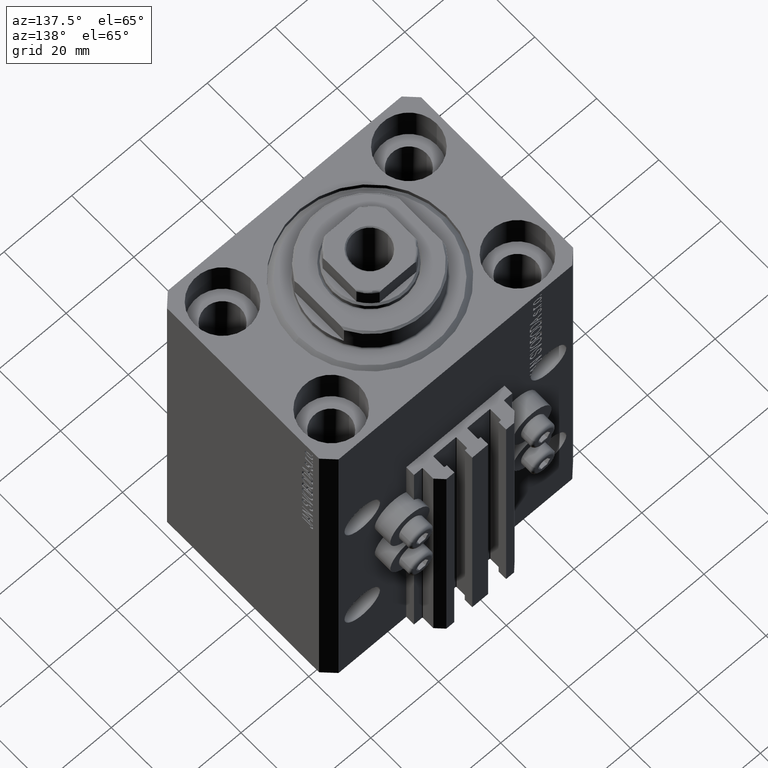
[diagram: clean part render]
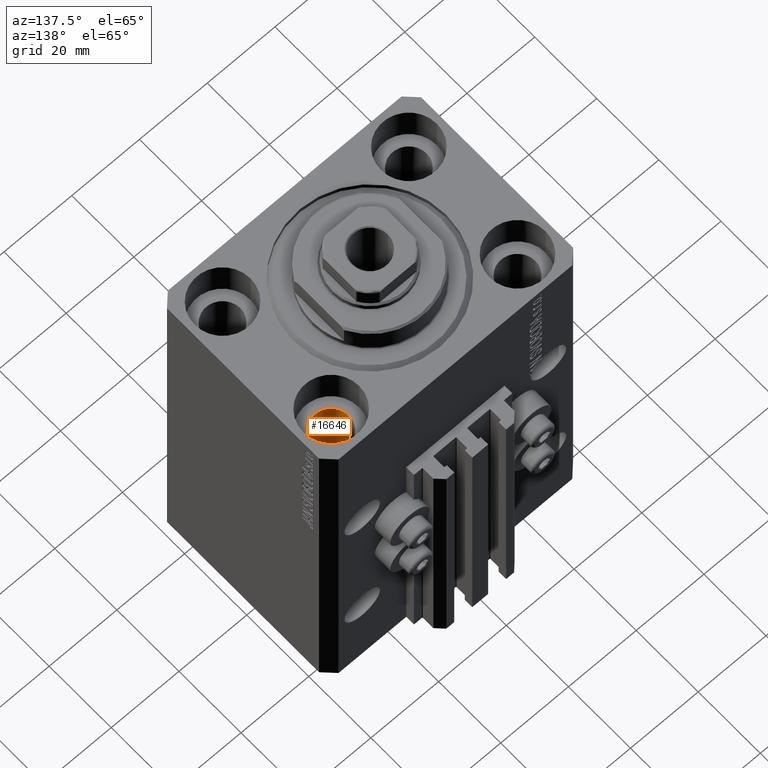
[diagram: same view with one face highlighted and labeled with its STEP entity id]
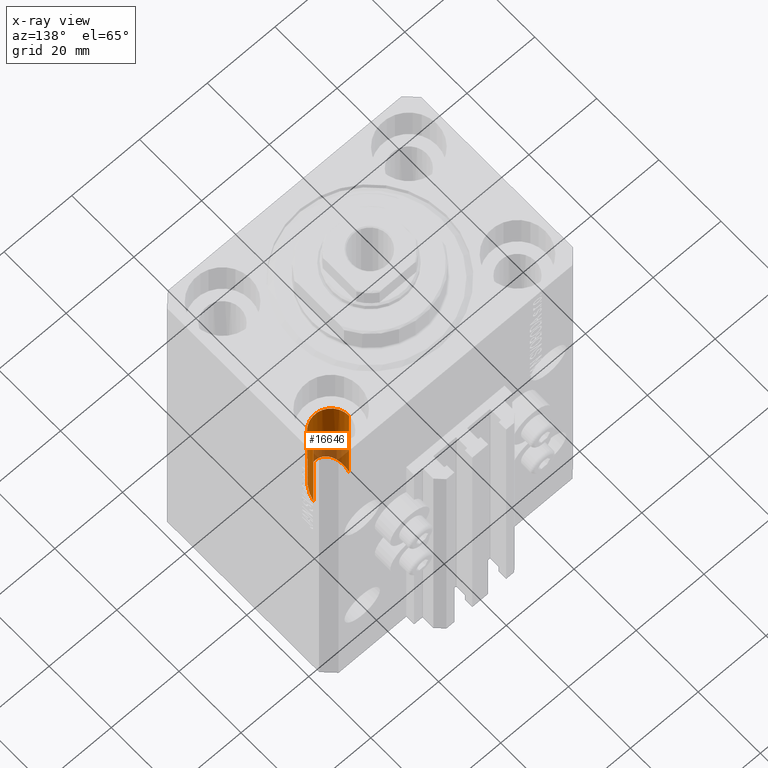
[diagram: x-ray of the same camera — body ghosted, the highlighted face saturated]
A machine part, auxiliary view. The second image highlights one B-rep face of the part: STEP entity #16646.
The next image is the same camera in x-ray: the body ghosted, the highlighted face saturated — about 32% of this face is hidden behind the body in this view.
In plain terms, the highlighted cylindrical surface (edge-blend (fillet) strip) has radius 5.25 mm, axis along (0, 0, 1).
Its self-contained STEP definition (entity closure, byte-faithful):
#458 = CARTESIAN_POINT ( 'NONE',  ( 22.25000000000001066, 7.000000000000031974, -29.50000000000001066 ) ) ;
#4165 = DIRECTION ( 'NONE',  ( -0.000000000000000000, -0.000000000000000000, 1.000000000000000000 ) ) ;
#4407 = LINE ( 'NONE', #33353, #24548 ) ;
#4984 = ORIENTED_EDGE ( 'NONE', *, *, #36917, .T. ) ;
#9651 = CARTESIAN_POINT ( 'NONE',  ( 22.25000000000000000, 17.50000000000001066, -11.00000000000000000 ) ) ;
#9768 = VERTEX_POINT ( 'NONE', #24798 ) ;
#10033 = LINE ( 'NONE', #16755, #45034 ) ;
#10362 = CARTESIAN_POINT ( 'NONE',  ( 27.49999999999999645, 17.50000000000001066, -110.0000000000000000 ) ) ;
#13235 = AXIS2_PLACEMENT_3D ( 'NONE', #10362, #40269, #14884 ) ;
#14884 = DIRECTION ( 'NONE',  ( 1.000000000000000000, 0.000000000000000000, 0.000000000000000000 ) ) ;
#15307 = ORIENTED_EDGE ( 'NONE', *, *, #45936, .F. ) ;
#16646 = ADVANCED_FACE ( 'NONE', ( #24733 ), #43401, .F. ) ;
#16755 = CARTESIAN_POINT ( 'NONE',  ( 32.74999999999999289, 17.50000000000001066, -110.0000000000000000 ) ) ;
#17453 = ORIENTED_EDGE ( 'NONE', *, *, #17631, .T. ) ;
#17631 = EDGE_CURVE ( 'NONE', #24319, #22152, #46150, .T. ) ;
#22152 = VERTEX_POINT ( 'NONE', #22518 ) ;
#22245 = CARTESIAN_POINT ( 'NONE',  ( 32.74999999999999289, 17.50000000000001421, -39.99999999999999289 ) ) ;
#22451 = EDGE_LOOP ( 'NONE', ( #45711, #4984, #17453, #15307 ) ) ;
#22518 = CARTESIAN_POINT ( 'NONE',  ( 32.74999999999999289, 17.50000000000001066, -11.00000000000000000 ) ) ;
#24319 = VERTEX_POINT ( 'NONE', #9651 ) ;
#24548 = VECTOR ( 'NONE', #4165, 1000.000000000000000 ) ;
#24733 = FACE_OUTER_BOUND ( 'NONE', #22451, .T. ) ;
#24798 = CARTESIAN_POINT ( 'NONE',  ( 22.25000000000000711, 17.50000000000001421, -39.99999999999999289 ) ) ;
#25831 = CARTESIAN_POINT ( 'NONE',  ( 22.25000000000000711, 17.50000000000001421, -39.99999999999999289 ) ) ;
#28612 = CARTESIAN_POINT ( 'NONE',  ( 27.49999999999999645, 17.50000000000001066, -11.00000000000000000 ) ) ;
#30819 =( BOUNDED_CURVE ( )  B_SPLINE_CURVE ( 3, ( #22245, #40434, #458, #25831 ),
 .UNSPECIFIED., .F., .F. ) 
 B_SPLINE_CURVE_WITH_KNOTS ( ( 4, 4 ),
 ( 4.712388980384689674, 7.853981633974482790 ),
 .UNSPECIFIED. ) 
 CURVE ( )  GEOMETRIC_REPRESENTATION_ITEM ( )  RATIONAL_B_SPLINE_CURVE ( ( 1.000000000000000000, 0.3333333333333333703, 0.3333333333333333703, 1.000000000000000000 ) ) 
 REPRESENTATION_ITEM ( '' )  );
#32673 = DIRECTION ( 'NONE',  ( 0.000000000000000000, 0.000000000000000000, 1.000000000000000000 ) ) ;
#33353 = CARTESIAN_POINT ( 'NONE',  ( 22.25000000000000000, 17.50000000000001066, -110.0000000000000000 ) ) ;
#34942 = DIRECTION ( 'NONE',  ( -0.000000000000000000, -0.000000000000000000, 1.000000000000000000 ) ) ;
#36917 = EDGE_CURVE ( 'NONE', #9768, #24319, #4407, .T. ) ;
#37814 = CARTESIAN_POINT ( 'NONE',  ( 32.74999999999999289, 17.50000000000001421, -39.99999999999999289 ) ) ;
#39050 = VERTEX_POINT ( 'NONE', #37814 ) ;
#40269 = DIRECTION ( 'NONE',  ( -0.000000000000000000, -0.000000000000000000, 1.000000000000000000 ) ) ;
#40434 = CARTESIAN_POINT ( 'NONE',  ( 32.74999999999999289, 7.000000000000031974, -29.50000000000001066 ) ) ;
#41568 = AXIS2_PLACEMENT_3D ( 'NONE', #28612, #32673, #46821 ) ;
#42566 = EDGE_CURVE ( 'NONE', #39050, #9768, #30819, .T. ) ;
#43401 = CYLINDRICAL_SURFACE ( 'NONE', #13235, 5.249999999999997335 ) ;
#45034 = VECTOR ( 'NONE', #34942, 1000.000000000000000 ) ;
#45711 = ORIENTED_EDGE ( 'NONE', *, *, #42566, .T. ) ;
#45936 = EDGE_CURVE ( 'NONE', #39050, #22152, #10033, .T. ) ;
#46150 = CIRCLE ( 'NONE', #41568, 5.249999999999997335 ) ;
#46821 = DIRECTION ( 'NONE',  ( 1.000000000000000000, 0.000000000000000000, 0.000000000000000000 ) ) ;